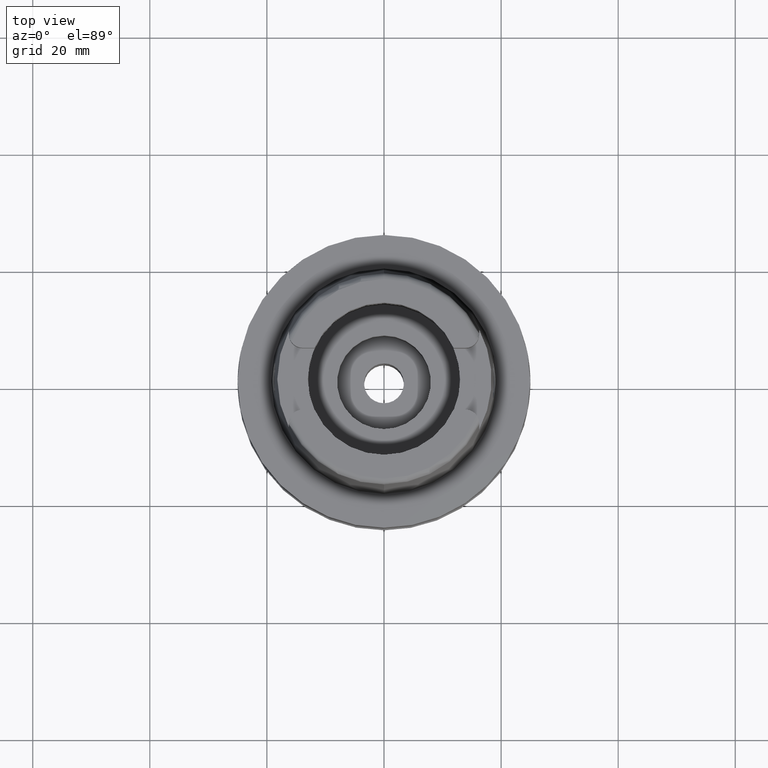
[diagram: clean part render]
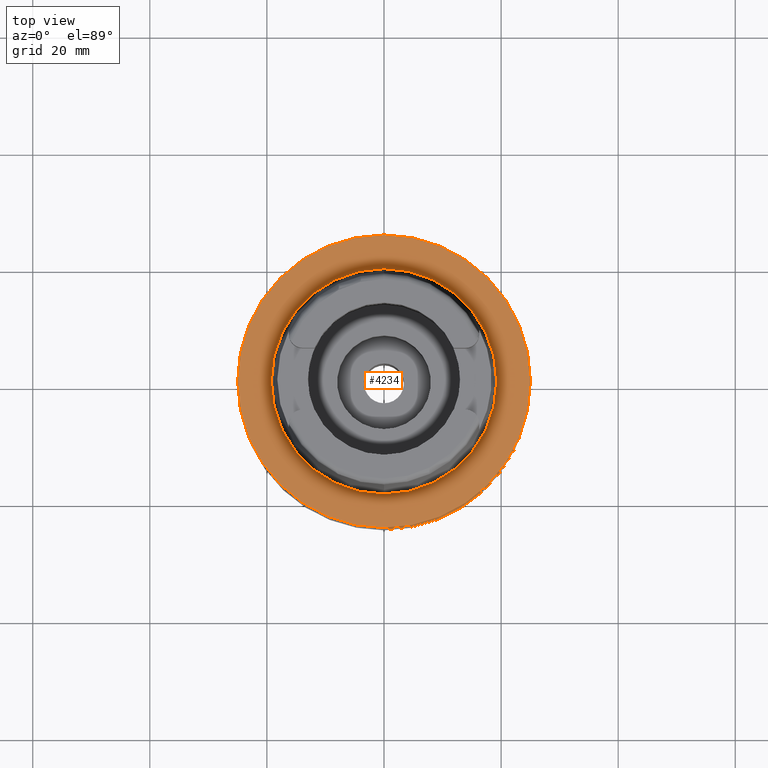
[diagram: same view with one face highlighted and labeled with its STEP entity id]
A machine part, top view. The second image highlights one B-rep face of the part: STEP entity #4234.
In plain terms, the highlighted planar face has unit normal (0, 0, 1).
Its self-contained STEP definition (entity closure, byte-faithful):
#1967=CARTESIAN_POINT('',(0.E0,0.E0,2.842170943040E-14));
#1968=DIRECTION('',(0.E0,0.E0,-1.E0));
#1969=DIRECTION('',(0.E0,-1.E0,0.E0));
#1970=AXIS2_PLACEMENT_3D('',#1967,#1968,#1969);
#1975=CARTESIAN_POINT('',(0.E0,0.E0,2.842170943040E-14));
#1976=DIRECTION('',(0.E0,0.E0,-1.E0));
#1977=DIRECTION('',(0.E0,1.E0,0.E0));
#1978=AXIS2_PLACEMENT_3D('',#1975,#1976,#1977);
#1983=CARTESIAN_POINT('',(0.E0,0.E0,-4.547473508865E-13));
#1984=DIRECTION('',(0.E0,0.E0,1.E0));
#1985=DIRECTION('',(0.E0,-1.E0,0.E0));
#1986=AXIS2_PLACEMENT_3D('',#1983,#1984,#1985);
#1991=CARTESIAN_POINT('',(0.E0,0.E0,-4.547473508865E-13));
#1992=DIRECTION('',(0.E0,0.E0,1.E0));
#1993=DIRECTION('',(0.E0,1.E0,0.E0));
#1994=AXIS2_PLACEMENT_3D('',#1991,#1992,#1993);
#2504=CARTESIAN_POINT('',(0.E0,-1.924999954279E1,-4.547473508865E-13));
#2505=VERTEX_POINT('',#2504);
#2506=CARTESIAN_POINT('',(0.E0,1.924999954279E1,-4.547473508865E-13));
#2507=VERTEX_POINT('',#2506);
#2783=CARTESIAN_POINT('',(0.E0,2.5E1,-1.894780628694E-14));
#2784=VERTEX_POINT('',#2783);
#2785=CARTESIAN_POINT('',(0.E0,-2.5E1,2.842170943040E-14));
#2786=VERTEX_POINT('',#2785);
#4221=CARTESIAN_POINT('',(0.E0,0.E0,0.E0));
#4222=DIRECTION('',(0.E0,0.E0,1.E0));
#4223=DIRECTION('',(0.E0,1.E0,0.E0));
#4224=AXIS2_PLACEMENT_3D('',#4221,#4222,#4223);
#4225=PLANE('',#4224);
#4226=ORIENTED_EDGE('',*,*,#4203,.T.);
#4227=ORIENTED_EDGE('',*,*,#4090,.T.);
#4228=EDGE_LOOP('',(#4226,#4227));
#4229=FACE_OUTER_BOUND('',#4228,.F.);
#4230=ORIENTED_EDGE('',*,*,#3016,.T.);
#4231=ORIENTED_EDGE('',*,*,#2985,.T.);
#4232=EDGE_LOOP('',(#4230,#4231));
#4233=FACE_BOUND('',#4232,.F.);
#1971=CIRCLE('',#1970,2.5E1);
#1979=CIRCLE('',#1978,2.5E1);
#1987=CIRCLE('',#1986,1.924999954279E1);
#1995=CIRCLE('',#1994,1.924999954279E1);
#2985=EDGE_CURVE('',#2507,#2505,#1995,.T.);
#3016=EDGE_CURVE('',#2505,#2507,#1987,.T.);
#4090=EDGE_CURVE('',#2784,#2786,#1979,.T.);
#4203=EDGE_CURVE('',#2786,#2784,#1971,.T.);
#4234=ADVANCED_FACE('',(#4229,#4233),#4225,.T.);